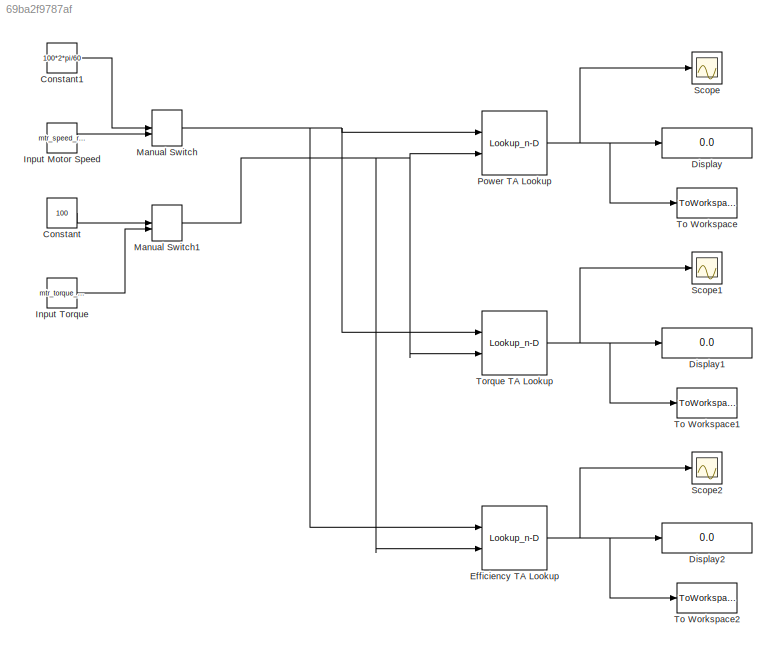
MODEL slx_69ba2f9787af
KIND model
CONFIG AbsTol = auto
CONFIG EnableMultiTasking = off
CONFIG FixedStep = auto
CONFIG MaxStep = auto
CONFIG MinStep = auto
CONFIG RelTol = 1e-3
CONFIG SampleTimeConstraint = Unconstrained
CONFIG Solver = VariableStepAuto
CONFIG SolverName = VariableStepAuto
CONFIG StartTime = 0.0
CONFIG StopTime = 10.0
BLOCK [Constant] Constant
  Value = 100
BLOCK [Constant] Constant1
  Value = 100*2*pi/60
BLOCK [Display] Display
  Decimation = 1
  Ports = [1]
BLOCK [Display] Display1
  Decimation = 1
  Ports = [1]
BLOCK [Display] Display2
  Decimation = 1
  Ports = [1]
BLOCK [Lookup_n-D] Efficiency TA Lookup
  BreakpointsForDimension1 = mtr_speed_rad
  BreakpointsForDimension2 = mtr_torque_Nm
  InternalRulePriority = Speed
  Ports = [2, 1]
  RndMeth = Simplest
  Table = opt_output_efficiency_location
BLOCK [Constant] Input Motor Speed
  Value = mtr_speed_rad
BLOCK [Constant] Input Torque
  Value = mtr_torque_Nm
BLOCK [ManualSwitch] Manual Switch
BLOCK [ManualSwitch] Manual Switch1
  CurrentSetting = 0
BLOCK [Lookup_n-D] Power TA Lookup
  BreakpointsForDimension1 = mtr_speed_rad
  BreakpointsForDimension2 = mtr_torque_Nm
  InternalRulePriority = Speed
  Ports = [2, 1]
  RndMeth = Simplest
  Table = opt_output_power_location
BLOCK [Scope] Scope
  NumInputPorts = 1
  Ports = [1]
  ScopeSpecificationString = Simulink.scopes.TimeScopeBlockCfg('CurrentConfiguration', extmgr.ConfigurationSet(extmgr.Configuration('Core','General UI',true),extmgr.Configuration('Core','Source UI',true),extmgr.Configuration('Sources','WiredSimulink',true),extmgr.Configuration('Visuals','Time Domain',true,'SerializedDisplays',{struct('MinYLimReal','0.25','MaxYLimReal','1.08333','YLabelReal','','MinYLimMag','0.25','MaxYLimMag'...<+1431ch>
BLOCK [Scope] Scope1
  NumInputPorts = 1
  Ports = [1]
  ScopeSpecificationString = Simulink.scopes.TimeScopeBlockCfg('CurrentConfiguration', extmgr.ConfigurationSet(extmgr.Configuration('Core','General UI',true),extmgr.Configuration('Core','Source UI',true),extmgr.Configuration('Sources','WiredSimulink',true,'DataLoggingVariableName','ScopeData1'),extmgr.Configuration('Visuals','Time Domain',true),extmgr.Configuration('Tools','Plot Navigation',true),extmgr.Configuration('Tools',...<+40ch>
BLOCK [Scope] Scope2
  NumInputPorts = 1
  Ports = [1]
  ScopeSpecificationString = Simulink.scopes.TimeScopeBlockCfg('CurrentConfiguration', extmgr.ConfigurationSet(extmgr.Configuration('Core','General UI',true),extmgr.Configuration('Core','Source UI',true),extmgr.Configuration('Sources','WiredSimulink',true,'DataLoggingVariableName','ScopeData2'),extmgr.Configuration('Visuals','Time Domain',true),extmgr.Configuration('Tools','Plot Navigation',true),extmgr.Configuration('Tools',...<+40ch>
BLOCK [ToWorkspace] To Workspace
  FixptAsFi = on
  MaxDataPoints = inf
  Ports = [1]
  SampleTime = -1
  Save2DSignal = 2-D array (concatenate along first dimension)
  VariableName = output_power_TA
BLOCK [ToWorkspace] To Workspace1
  FixptAsFi = on
  MaxDataPoints = inf
  Ports = [1]
  SampleTime = -1
  Save2DSignal = 2-D array (concatenate along first dimension)
  VariableName = output_torque_TA
BLOCK [ToWorkspace] To Workspace2
  FixptAsFi = on
  MaxDataPoints = inf
  Ports = [1]
  SampleTime = -1
  Save2DSignal = 2-D array (concatenate along first dimension)
  VariableName = output_efficiency_TA
BLOCK [Lookup_n-D] Torque TA Lookup
  BreakpointsForDimension1 = mtr_speed_rad
  BreakpointsForDimension2 = mtr_torque_Nm
  InternalRulePriority = Speed
  Ports = [2, 1]
  RndMeth = Simplest
  Table = opt_output_torque_location
LINE Constant1:1 -> Manual Switch:1
LINE Constant:1 -> Manual Switch1:1
NET Efficiency TA Lookup:1 -> Display2:1, Scope2:1, To Workspace2:1
LINE Input Motor Speed:1 -> Manual Switch:2
LINE Input Torque:1 -> Manual Switch1:2
NET Manual Switch1:1 -> Efficiency TA Lookup:2, Power TA Lookup:2, Torque TA Lookup:2
NET Manual Switch:1 -> Efficiency TA Lookup:1, Power TA Lookup:1, Torque TA Lookup:1
NET Power TA Lookup:1 -> Display:1, Scope:1, To Workspace:1
NET Torque TA Lookup:1 -> Display1:1, Scope1:1, To Workspace1:1
note: NET lines group one-source signal fan-out (src -> all destinations, sorted); 1:1 wires keep LINE
